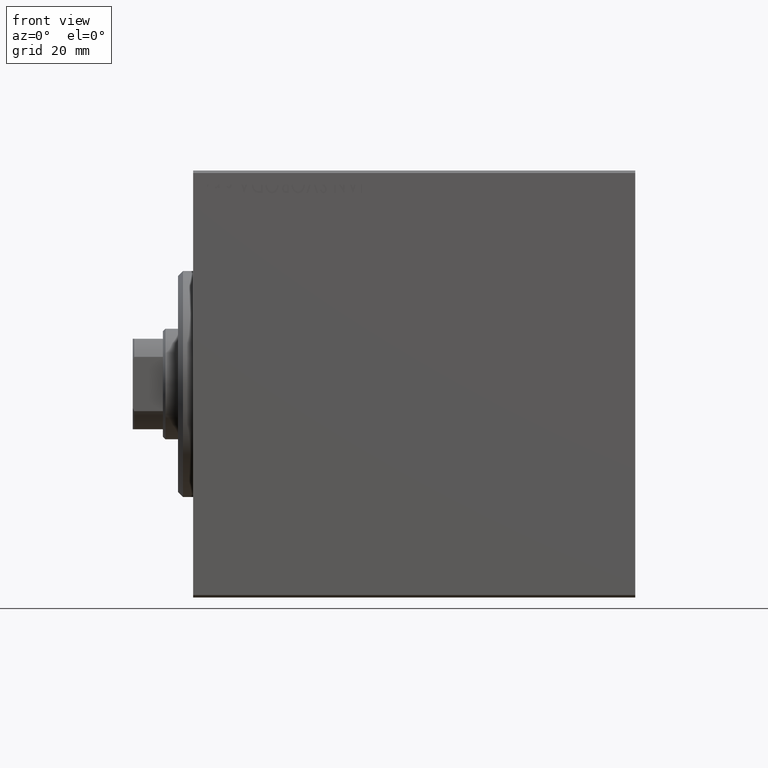
[diagram: clean part render]
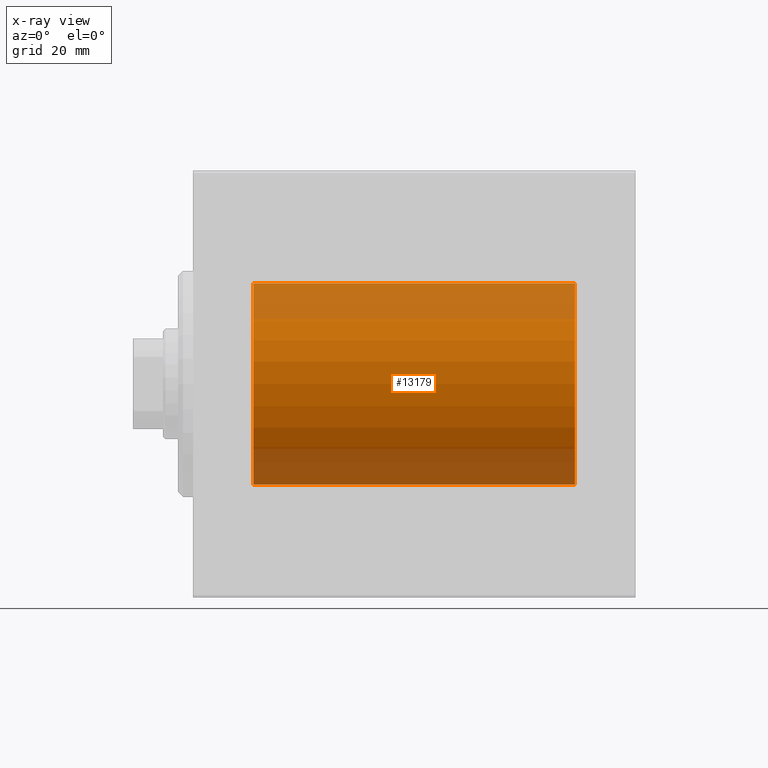
[diagram: x-ray — body ghosted, one internal face saturated and labeled with its STEP entity id]
A machine part, front view, then the same camera in x-ray: the body is ghosted and one INTERNAL B-rep face — a face not visible from any outside direction — is saturated and labeled: STEP entity #13179.
In plain terms, the highlighted cylindrical surface (partial cylindrical patch) has radius 20 mm, axis along (-1, -0, -0).
Its self-contained STEP definition (entity closure, byte-faithful):
#761 = AXIS2_PLACEMENT_3D ( 'NONE', #10286, #14287, #27675 ) ;
#1474 = DIRECTION ( 'NONE',  ( 0.000000000000000000, 0.000000000000000000, 1.000000000000000000 ) ) ;
#2216 = CARTESIAN_POINT ( 'NONE',  ( 76.00000000000000000, 0.000000000000000000, 20.00000000000000000 ) ) ;
#2736 = CYLINDRICAL_SURFACE ( 'NONE', #29917, 20.00000000000000000 ) ;
#3552 = VECTOR ( 'NONE', #12026, 1000.000000000000000 ) ;
#4212 = EDGE_LOOP ( 'NONE', ( #33944, #11811, #21028, #18253 ) ) ;
#4366 = LINE ( 'NONE', #14406, #38529 ) ;
#7949 = CARTESIAN_POINT ( 'NONE',  ( 76.00000000000000000, 0.000000000000000000, 0.000000000000000000 ) ) ;
#8901 = LINE ( 'NONE', #2216, #3552 ) ;
#9443 = CARTESIAN_POINT ( 'NONE',  ( 76.00000000000000000, 0.000000000000000000, 0.000000000000000000 ) ) ;
#9653 = DIRECTION ( 'NONE',  ( 0.000000000000000000, 0.000000000000000000, 1.000000000000000000 ) ) ;
#10286 = CARTESIAN_POINT ( 'NONE',  ( 11.99999999999999645, 0.000000000000000000, 0.000000000000000000 ) ) ;
#10628 = CARTESIAN_POINT ( 'NONE',  ( 76.00000000000000000, 2.449293598294706513E-15, -20.00000000000000000 ) ) ;
#11811 = ORIENTED_EDGE ( 'NONE', *, *, #19005, .T. ) ;
#12026 = DIRECTION ( 'NONE',  ( -1.000000000000000000, -0.000000000000000000, -0.000000000000000000 ) ) ;
#13179 = ADVANCED_FACE ( 'NONE', ( #26819 ), #2736, .F. ) ;
#14287 = DIRECTION ( 'NONE',  ( -1.000000000000000000, 0.000000000000000000, 0.000000000000000000 ) ) ;
#14406 = CARTESIAN_POINT ( 'NONE',  ( 76.00000000000000000, 2.449293598294706513E-15, -20.00000000000000000 ) ) ;
#18253 = ORIENTED_EDGE ( 'NONE', *, *, #35367, .F. ) ;
#19005 = EDGE_CURVE ( 'NONE', #41255, #25796, #4366, .T. ) ;
#19264 = CIRCLE ( 'NONE', #761, 20.00000000000000000 ) ;
#21028 = ORIENTED_EDGE ( 'NONE', *, *, #38958, .T. ) ;
#21232 = AXIS2_PLACEMENT_3D ( 'NONE', #7949, #38743, #1474 ) ;
#21310 = DIRECTION ( 'NONE',  ( -1.000000000000000000, -0.000000000000000000, -0.000000000000000000 ) ) ;
#22291 = VERTEX_POINT ( 'NONE', #37650 ) ;
#22593 = DIRECTION ( 'NONE',  ( -1.000000000000000000, -0.000000000000000000, -0.000000000000000000 ) ) ;
#24798 = CIRCLE ( 'NONE', #21232, 20.00000000000000000 ) ;
#25796 = VERTEX_POINT ( 'NONE', #31883 ) ;
#26819 = FACE_OUTER_BOUND ( 'NONE', #4212, .T. ) ;
#27675 = DIRECTION ( 'NONE',  ( 0.000000000000000000, 0.000000000000000000, 1.000000000000000000 ) ) ;
#29489 = EDGE_CURVE ( 'NONE', #41255, #34038, #24798, .T. ) ;
#29917 = AXIS2_PLACEMENT_3D ( 'NONE', #9443, #22593, #9653 ) ;
#31883 = CARTESIAN_POINT ( 'NONE',  ( 11.99999999999999645, 2.449293598294706513E-15, -20.00000000000000000 ) ) ;
#33944 = ORIENTED_EDGE ( 'NONE', *, *, #29489, .F. ) ;
#34038 = VERTEX_POINT ( 'NONE', #44007 ) ;
#35367 = EDGE_CURVE ( 'NONE', #34038, #22291, #8901, .T. ) ;
#37650 = CARTESIAN_POINT ( 'NONE',  ( 11.99999999999999645, 0.000000000000000000, 20.00000000000000000 ) ) ;
#38529 = VECTOR ( 'NONE', #21310, 1000.000000000000000 ) ;
#38743 = DIRECTION ( 'NONE',  ( -1.000000000000000000, 0.000000000000000000, 0.000000000000000000 ) ) ;
#38958 = EDGE_CURVE ( 'NONE', #25796, #22291, #19264, .T. ) ;
#41255 = VERTEX_POINT ( 'NONE', #10628 ) ;
#44007 = CARTESIAN_POINT ( 'NONE',  ( 76.00000000000000000, 0.000000000000000000, 20.00000000000000000 ) ) ;